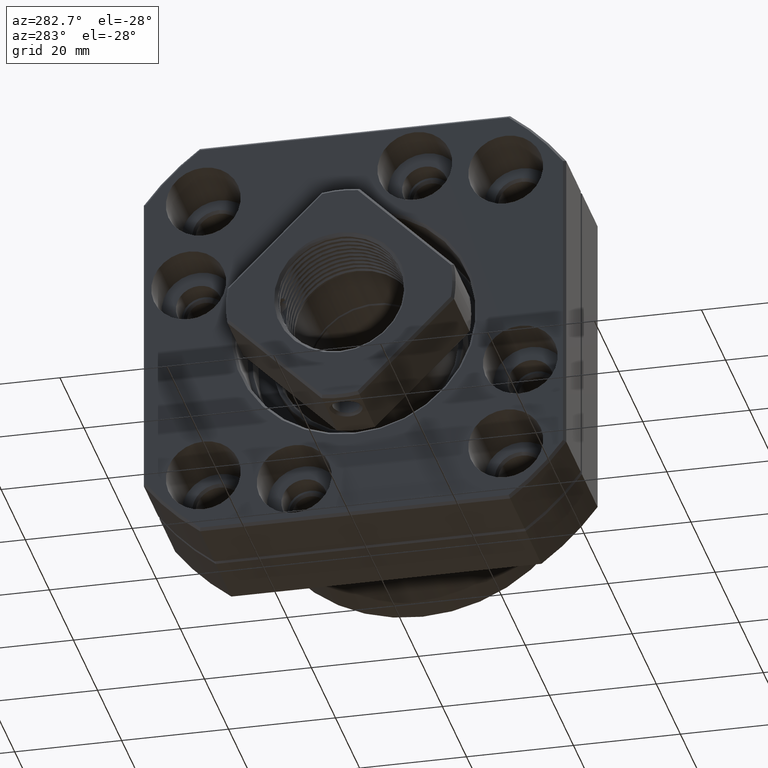
[diagram: clean part render]
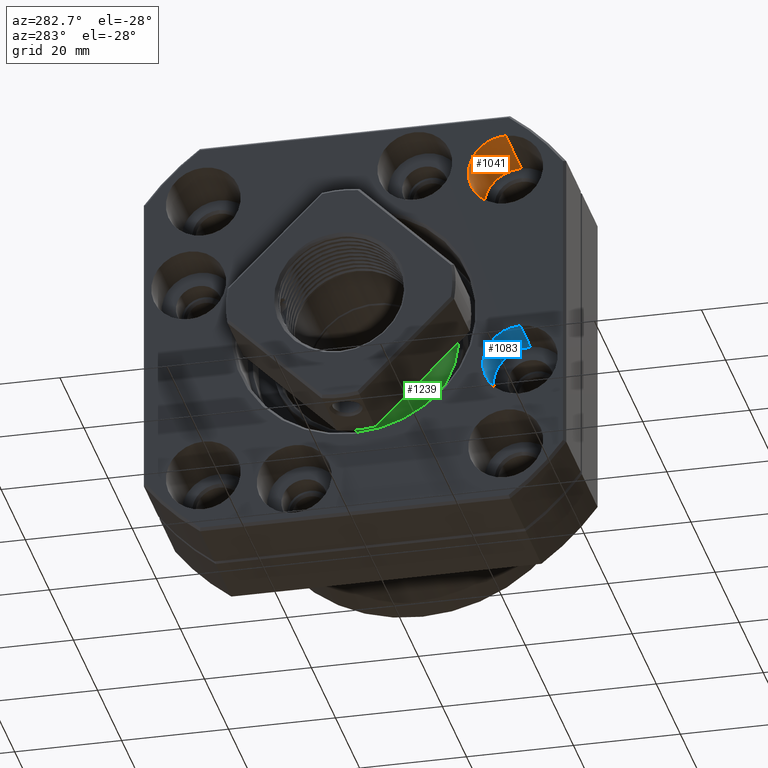
[diagram: same view with three faces highlighted in distinct colors, each labeled with its STEP entity id]
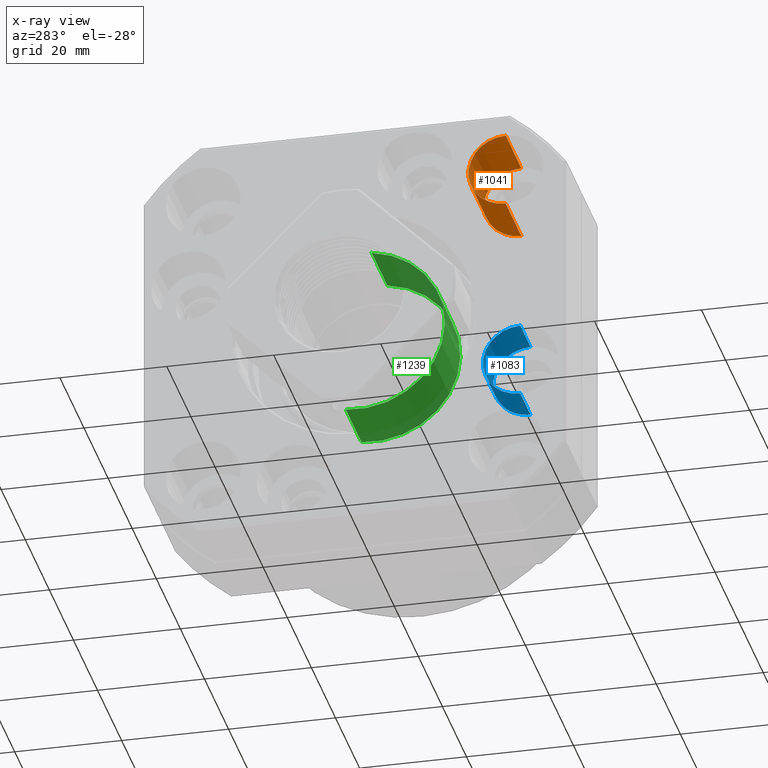
[diagram: x-ray of the same camera — body ghosted, the three highlighted faces saturated]
A machine part, auxiliary view with three faces highlighted in distinct colors.
The next image is the same camera in x-ray (body ghosted, the three faces saturated) — at least one of them is partly hidden behind the body in this view.
Their STEP definitions:

[orange] entity #1041 — the highlighted cylindrical surface (partial cylindrical patch) has radius 7 mm, axis along (-1, 0, 0).
#569 = VERTEX_POINT ( 'NONE', #17381 ) ;
#573 = EDGE_CURVE ( 'NONE', #623, #569, #17374, .T. ) ;
#576 = VERTEX_POINT ( 'NONE', #17366 ) ;
#591 = EDGE_CURVE ( 'NONE', #625, #576, #17398, .T. ) ;
#623 = VERTEX_POINT ( 'NONE', #17460 ) ;
#625 = VERTEX_POINT ( 'NONE', #17454 ) ;
#917 = EDGE_CURVE ( 'NONE', #623, #625, #18010, .T. ) ;
#969 = ORIENTED_EDGE ( 'NONE', *, *, #573, .T. ) ;
#970 = ORIENTED_EDGE ( 'NONE', *, *, #1076, .T. ) ;
#1041 = ADVANCED_FACE ( 'NONE', ( #18208 ), #18203, .F. ) ;
#1042 = EDGE_LOOP ( 'NONE', ( #1043, #1044, #969, #970 ) ) ;
#1043 = ORIENTED_EDGE ( 'NONE', *, *, #591, .F. ) ;
#1044 = ORIENTED_EDGE ( 'NONE', *, *, #917, .F. ) ;
#1076 = EDGE_CURVE ( 'NONE', #569, #576, #18279, .T. ) ;
#17366 = CARTESIAN_POINT ( 'NONE',  ( -13.00000000000000000, -28.28427124746155000, 21.28427124746224300 ) ) ;
#17371 = DIRECTION ( 'NONE',  ( -1.000000000000000000, 0.0000000000000000000, 0.0000000000000000000 ) ) ;
#17372 = VECTOR ( 'NONE', #17371, 1000.000000000000000 ) ;
#17373 = CARTESIAN_POINT ( 'NONE',  ( -13.00000000000000000, -28.28427124746155400, 35.28427124746224300 ) ) ;
#17374 = LINE ( 'NONE', #17373, #17372 ) ;
#17381 = CARTESIAN_POINT ( 'NONE',  ( -13.00000000000000000, -28.28427124746155400, 35.28427124746225000 ) ) ;
#17395 = DIRECTION ( 'NONE',  ( -1.000000000000000000, 0.0000000000000000000, 0.0000000000000000000 ) ) ;
#17396 = VECTOR ( 'NONE', #17395, 1000.000000000000000 ) ;
#17397 = CARTESIAN_POINT ( 'NONE',  ( -13.00000000000000000, -28.28427124746155000, 21.28427124746224700 ) ) ;
#17398 = LINE ( 'NONE', #17397, #17396 ) ;
#17454 = CARTESIAN_POINT ( 'NONE',  ( 0.0000000000000000000, -28.28427124746155000, 21.28427124746224700 ) ) ;
#17460 = CARTESIAN_POINT ( 'NONE',  ( 0.0000000000000000000, -28.28427124746155400, 35.28427124746224300 ) ) ;
#18006 = DIRECTION ( 'NONE',  ( 0.0000000000000000000, 0.0000000000000000000, 1.000000000000000000 ) ) ;
#18007 = DIRECTION ( 'NONE',  ( -1.000000000000000000, 0.0000000000000000000, 0.0000000000000000000 ) ) ;
#18008 = CARTESIAN_POINT ( 'NONE',  ( 0.0000000000000000000, -28.28427124746155400, 28.28427124746224300 ) ) ;
#18009 = AXIS2_PLACEMENT_3D ( 'NONE', #18008, #18007, #18006 ) ;
#18010 = CIRCLE ( 'NONE', #18009, 6.999999999999999100 ) ;
#18199 = DIRECTION ( 'NONE',  ( 0.0000000000000000000, 0.0000000000000000000, 1.000000000000000000 ) ) ;
#18200 = DIRECTION ( 'NONE',  ( -1.000000000000000000, 0.0000000000000000000, 0.0000000000000000000 ) ) ;
#18201 = CARTESIAN_POINT ( 'NONE',  ( -13.00000000000000000, -28.28427124746155400, 28.28427124746224300 ) ) ;
#18202 = AXIS2_PLACEMENT_3D ( 'NONE', #18201, #18200, #18199 ) ;
#18203 = CYLINDRICAL_SURFACE ( 'NONE', #18202, 6.999999999999999100 ) ;
#18208 = FACE_OUTER_BOUND ( 'NONE', #1042, .T. ) ;
#18275 = DIRECTION ( 'NONE',  ( 0.0000000000000000000, 0.0000000000000000000, 1.000000000000000000 ) ) ;
#18276 = DIRECTION ( 'NONE',  ( -1.000000000000000000, 0.0000000000000000000, 0.0000000000000000000 ) ) ;
#18277 = CARTESIAN_POINT ( 'NONE',  ( -13.00000000000000000, -28.28427124746155400, 28.28427124746224300 ) ) ;
#18278 = AXIS2_PLACEMENT_3D ( 'NONE', #18277, #18276, #18275 ) ;
#18279 = CIRCLE ( 'NONE', #18278, 7.000000000000006200 ) ;

[blue] entity #1083 — the highlighted cylindrical surface (partial cylindrical patch) has radius 7 mm, axis along (-1, 0, 0).
#1008 = EDGE_LOOP ( 'NONE', ( #1009, #1010, #1011, #1012 ) ) ;
#1009 = ORIENTED_EDGE ( 'NONE', *, *, #13899, .F. ) ;
#1010 = ORIENTED_EDGE ( 'NONE', *, *, #1081, .F. ) ;
#1011 = ORIENTED_EDGE ( 'NONE', *, *, #13897, .T. ) ;
#1012 = ORIENTED_EDGE ( 'NONE', *, *, #1760, .T. ) ;
#1081 = EDGE_CURVE ( 'NONE', #13905, #13906, #18274, .T. ) ;
#1083 = ADVANCED_FACE ( 'NONE', ( #18269 ), #18268, .F. ) ;
#1760 = EDGE_CURVE ( 'NONE', #13681, #13901, #19562, .T. ) ;
#13681 = VERTEX_POINT ( 'NONE', #19791 ) ;
#13897 = EDGE_CURVE ( 'NONE', #13905, #13681, #19842, .T. ) ;
#13899 = EDGE_CURVE ( 'NONE', #13906, #13901, #19838, .T. ) ;
#13901 = VERTEX_POINT ( 'NONE', #19834 ) ;
#13905 = VERTEX_POINT ( 'NONE', #19828 ) ;
#13906 = VERTEX_POINT ( 'NONE', #19827 ) ;
#18264 = DIRECTION ( 'NONE',  ( 0.0000000000000000000, 0.0000000000000000000, 1.000000000000000000 ) ) ;
#18265 = DIRECTION ( 'NONE',  ( -1.000000000000000000, 0.0000000000000000000, 0.0000000000000000000 ) ) ;
#18266 = CARTESIAN_POINT ( 'NONE',  ( -13.00000000000000000, -31.00985648593500000, -11.28666472974699000 ) ) ;
#18267 = AXIS2_PLACEMENT_3D ( 'NONE', #18266, #18265, #18264 ) ;
#18268 = CYLINDRICAL_SURFACE ( 'NONE', #18267, 6.999999999999998200 ) ;
#18269 = FACE_OUTER_BOUND ( 'NONE', #1008, .T. ) ;
#18270 = DIRECTION ( 'NONE',  ( 0.0000000000000000000, 0.0000000000000000000, 1.000000000000000000 ) ) ;
#18271 = DIRECTION ( 'NONE',  ( -1.000000000000000000, 0.0000000000000000000, 0.0000000000000000000 ) ) ;
#18272 = CARTESIAN_POINT ( 'NONE',  ( -4.499999999999999100, -31.00985648593500000, -11.28666472974699000 ) ) ;
#18273 = AXIS2_PLACEMENT_3D ( 'NONE', #18272, #18271, #18270 ) ;
#18274 = CIRCLE ( 'NONE', #18273, 6.999999999999997300 ) ;
#19558 = DIRECTION ( 'NONE',  ( 0.0000000000000000000, 0.0000000000000000000, 1.000000000000000000 ) ) ;
#19559 = DIRECTION ( 'NONE',  ( -1.000000000000000000, 0.0000000000000000000, 0.0000000000000000000 ) ) ;
#19560 = CARTESIAN_POINT ( 'NONE',  ( -13.00000000000000000, -31.00985648593500000, -11.28666472974699000 ) ) ;
#19561 = AXIS2_PLACEMENT_3D ( 'NONE', #19560, #19559, #19558 ) ;
#19562 = CIRCLE ( 'NONE', #19561, 6.999999999999999100 ) ;
#19791 = CARTESIAN_POINT ( 'NONE',  ( -13.00000000000000000, -31.00985648593500000, -4.286664729746990900 ) ) ;
#19827 = CARTESIAN_POINT ( 'NONE',  ( -4.499999999999999100, -31.00985648593499600, -18.28666472974698500 ) ) ;
#19828 = CARTESIAN_POINT ( 'NONE',  ( -4.499999999999999100, -31.00985648593500000, -4.286664729746992600 ) ) ;
#19834 = CARTESIAN_POINT ( 'NONE',  ( -13.00000000000000000, -31.00985648593499600, -18.28666472974698800 ) ) ;
#19835 = DIRECTION ( 'NONE',  ( -1.000000000000000000, 0.0000000000000000000, 0.0000000000000000000 ) ) ;
#19836 = VECTOR ( 'NONE', #19835, 1000.000000000000000 ) ;
#19837 = CARTESIAN_POINT ( 'NONE',  ( -13.00000000000000000, -31.00985648593499600, -18.28666472974698800 ) ) ;
#19838 = LINE ( 'NONE', #19837, #19836 ) ;
#19839 = DIRECTION ( 'NONE',  ( -1.000000000000000000, 0.0000000000000000000, 0.0000000000000000000 ) ) ;
#19840 = VECTOR ( 'NONE', #19839, 1000.000000000000000 ) ;
#19841 = CARTESIAN_POINT ( 'NONE',  ( -13.00000000000000000, -31.00985648593500000, -4.286664729746991800 ) ) ;
#19842 = LINE ( 'NONE', #19841, #19840 ) ;

[green] entity #1239 — the highlighted cylindrical surface (partial cylindrical patch) has radius 16.1 mm, axis along (-1, 0, -0).
#1205 = VERTEX_POINT ( 'NONE', #18446 ) ;
#1207 = EDGE_CURVE ( 'NONE', #1208, #1205, #18445, .T. ) ;
#1208 = VERTEX_POINT ( 'NONE', #18440 ) ;
#1239 = ADVANCED_FACE ( 'NONE', ( #18508 ), #18504, .T. ) ;
#1240 = EDGE_LOOP ( 'NONE', ( #1241, #1292, #1294, #1295 ) ) ;
#1241 = ORIENTED_EDGE ( 'NONE', *, *, #1251, .T. ) ;
#1249 = VERTEX_POINT ( 'NONE', #18488 ) ;
#1251 = EDGE_CURVE ( 'NONE', #1252, #1249, #18487, .T. ) ;
#1252 = VERTEX_POINT ( 'NONE', #18543 ) ;
#1292 = ORIENTED_EDGE ( 'NONE', *, *, #1293, .T. ) ;
#1293 = EDGE_CURVE ( 'NONE', #1249, #1208, #18639, .T. ) ;
#1294 = ORIENTED_EDGE ( 'NONE', *, *, #1207, .T. ) ;
#1295 = ORIENTED_EDGE ( 'NONE', *, *, #1296, .F. ) ;
#1296 = EDGE_CURVE ( 'NONE', #1252, #1205, #18635, .T. ) ;
#18440 = CARTESIAN_POINT ( 'NONE',  ( -9.499999999999998200, -2.423387038299925900, 15.91656983343458800 ) ) ;
#18441 = DIRECTION ( 'NONE',  ( 0.0000000000000000000, -0.1505209340558957800, 0.9886068219524587500 ) ) ;
#18442 = DIRECTION ( 'NONE',  ( 1.000000000000000000, 0.0000000000000000000, 0.0000000000000000000 ) ) ;
#18443 = CARTESIAN_POINT ( 'NONE',  ( -9.499999999999998200, -1.797874146863272700E-015, -1.618460872480437200E-015 ) ) ;
#18444 = AXIS2_PLACEMENT_3D ( 'NONE', #18443, #18442, #18441 ) ;
#18445 = CIRCLE ( 'NONE', #18444, 16.10000000000000100 ) ;
#18446 = CARTESIAN_POINT ( 'NONE',  ( -9.499999999999998200, 2.423387038299920500, -15.91656983343458800 ) ) ;
#18487 = CIRCLE ( 'NONE', #18547, 16.10000000000000100 ) ;
#18488 = CARTESIAN_POINT ( 'NONE',  ( 3.499999999999999600, -2.423387038299925900, 15.91656983343458800 ) ) ;
#18499 = DIRECTION ( 'NONE',  ( 0.0000000000000000000, 0.1505209340558957800, -0.9886068219524587500 ) ) ;
#18500 = DIRECTION ( 'NONE',  ( -1.000000000000000000, 0.0000000000000000000, -0.0000000000000000000 ) ) ;
#18501 = CARTESIAN_POINT ( 'NONE',  ( -25.06152153273632200, -1.797874146863272700E-015, -1.618460872480437200E-015 ) ) ;
#18502 = AXIS2_PLACEMENT_3D ( 'NONE', #18501, #18500, #18499 ) ;
#18504 = CYLINDRICAL_SURFACE ( 'NONE', #18502, 16.10000000000000100 ) ;
#18508 = FACE_OUTER_BOUND ( 'NONE', #1240, .T. ) ;
#18543 = CARTESIAN_POINT ( 'NONE',  ( 3.499999999999999600, 2.423387038299920500, -15.91656983343458800 ) ) ;
#18544 = DIRECTION ( 'NONE',  ( 0.0000000000000000000, 0.1505209340558957800, -0.9886068219524587500 ) ) ;
#18545 = DIRECTION ( 'NONE',  ( -1.000000000000000000, 0.0000000000000000000, -0.0000000000000000000 ) ) ;
#18546 = CARTESIAN_POINT ( 'NONE',  ( 3.499999999999999600, -1.797874146863272700E-015, -1.618460872480437200E-015 ) ) ;
#18547 = AXIS2_PLACEMENT_3D ( 'NONE', #18546, #18545, #18544 ) ;
#18632 = DIRECTION ( 'NONE',  ( -1.000000000000000000, 0.0000000000000000000, -0.0000000000000000000 ) ) ;
#18633 = VECTOR ( 'NONE', #18632, 1000.000000000000000 ) ;
#18634 = CARTESIAN_POINT ( 'NONE',  ( -25.06152153273632200, 2.423387038299920500, -15.91656983343458800 ) ) ;
#18635 = LINE ( 'NONE', #18634, #18633 ) ;
#18636 = DIRECTION ( 'NONE',  ( -1.000000000000000000, 0.0000000000000000000, -0.0000000000000000000 ) ) ;
#18637 = VECTOR ( 'NONE', #18636, 1000.000000000000000 ) ;
#18638 = CARTESIAN_POINT ( 'NONE',  ( -25.06152153273632200, -2.423387038299925900, 15.91656983343458800 ) ) ;
#18639 = LINE ( 'NONE', #18638, #18637 ) ;